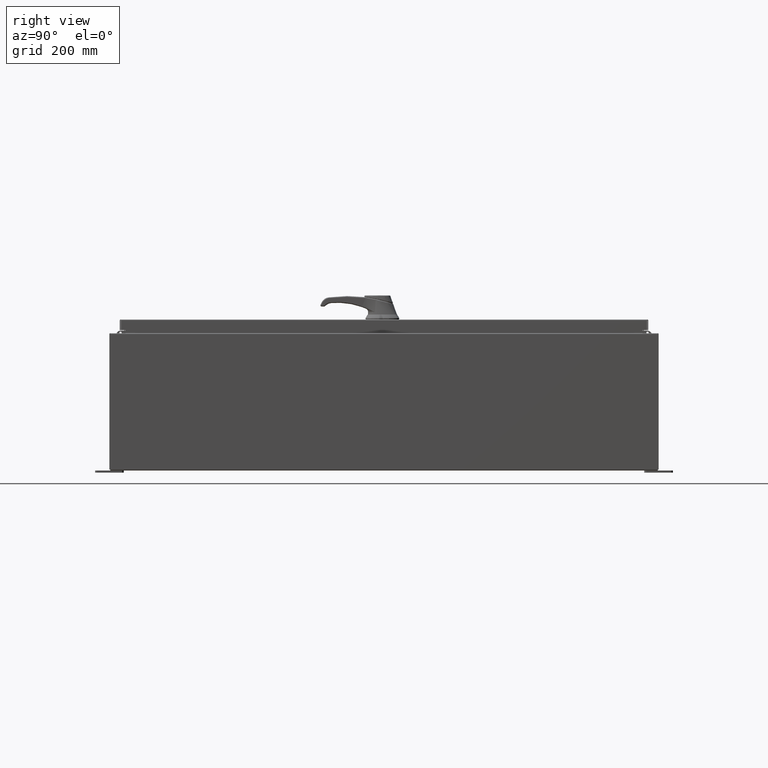
[diagram: clean part render]
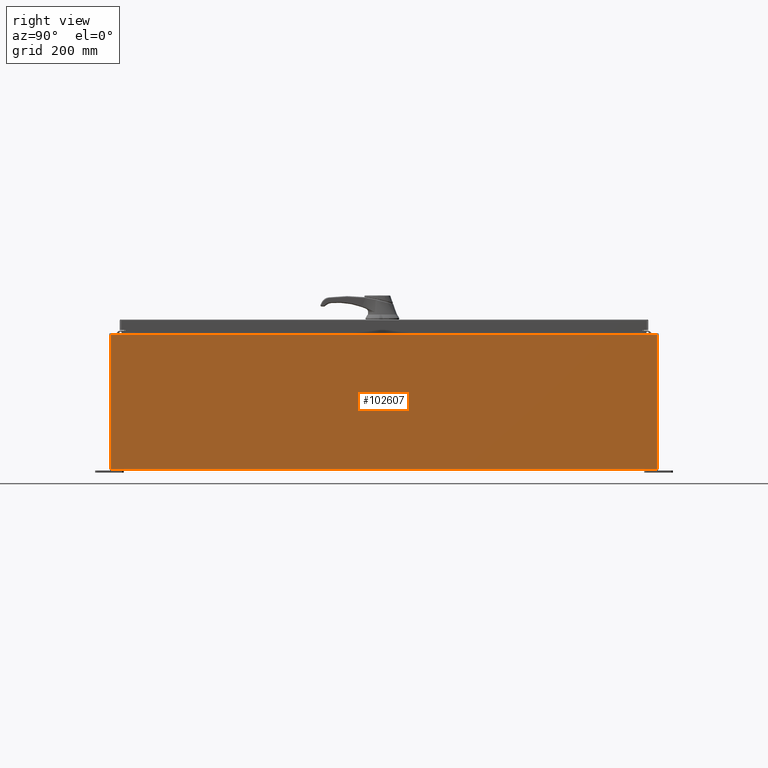
[diagram: same view with one face highlighted and labeled with its STEP entity id]
A machine part, right view. The second image highlights one B-rep face of the part: STEP entity #102607.
In plain terms, the highlighted planar face has unit normal (-1, 0, 0).
Its self-contained STEP definition (entity closure, byte-faithful):
#190 = DIRECTION ( 'NONE',  ( -1.000000000000000000, 0.0000000000000000000, 3.482016343714355100E-015 ) ) ;
#2678 = CARTESIAN_POINT ( 'NONE',  ( 18.00000000000003900, 23.92529999999998600, 11.83760000000000200 ) ) ;
#4568 = ORIENTED_EDGE ( 'NONE', *, *, #33200, .T. ) ;
#10019 = DIRECTION ( 'NONE',  ( -0.0000000000000000000, -1.000000000000000000, -0.0000000000000000000 ) ) ;
#11532 = CARTESIAN_POINT ( 'NONE',  ( 17.99999999999999600, -23.92529999999998900, 0.01299999999999897800 ) ) ;
#13316 = ORIENTED_EDGE ( 'NONE', *, *, #66158, .T. ) ;
#14731 = CARTESIAN_POINT ( 'NONE',  ( 18.00000000000003900, -23.92529999999998900, 11.83760000000000200 ) ) ;
#15460 = VERTEX_POINT ( 'NONE', #69474 ) ;
#15746 = EDGE_CURVE ( 'NONE', #41990, #130540, #18538, .T. ) ;
#18538 = LINE ( 'NONE', #51726, #46141 ) ;
#33200 = EDGE_CURVE ( 'NONE', #130540, #76862, #59593, .T. ) ;
#33904 = ORIENTED_EDGE ( 'NONE', *, *, #15746, .T. ) ;
#41990 = VERTEX_POINT ( 'NONE', #2678 ) ;
#46141 = VECTOR ( 'NONE', #10019, 39.37007874015748100 ) ;
#47629 = CARTESIAN_POINT ( 'NONE',  ( 17.99999999999999600, -23.92529999999998900, 0.01299999999999984700 ) ) ;
#51493 = FACE_OUTER_BOUND ( 'NONE', #52325, .T. ) ;
#51726 = CARTESIAN_POINT ( 'NONE',  ( 18.00000000000003900, 23.92529999999998900, 11.83760000000000200 ) ) ;
#52325 = EDGE_LOOP ( 'NONE', ( #33904, #4568, #90750, #13316 ) ) ;
#54434 = DIRECTION ( 'NONE',  ( -3.482016343714355500E-015, 0.0000000000000000000, -1.000000000000000000 ) ) ;
#58040 = DIRECTION ( 'NONE',  ( -1.590339826456887700E-031, -1.000000000000000000, -4.567295697298285000E-017 ) ) ;
#59593 = LINE ( 'NONE', #75287, #111473 ) ;
#66131 = AXIS2_PLACEMENT_3D ( 'NONE', #103596, #190, #72762 ) ;
#66158 = EDGE_CURVE ( 'NONE', #15460, #41990, #89676, .T. ) ;
#69474 = CARTESIAN_POINT ( 'NONE',  ( 17.99999999999999600, 23.92529999999998600, 0.01300000000000203200 ) ) ;
#72762 = DIRECTION ( 'NONE',  ( 3.482016343714355100E-015, 0.0000000000000000000, 1.000000000000000000 ) ) ;
#75287 = CARTESIAN_POINT ( 'NONE',  ( 17.99999999999999600, -23.92529999999998900, -6.293710784286996200E-014 ) ) ;
#76862 = VERTEX_POINT ( 'NONE', #11532 ) ;
#89676 = LINE ( 'NONE', #92966, #113991 ) ;
#90750 = ORIENTED_EDGE ( 'NONE', *, *, #121441, .F. ) ;
#92966 = CARTESIAN_POINT ( 'NONE',  ( 17.99999999999999600, 23.92529999999998900, -6.293710784286996200E-014 ) ) ;
#101772 = LINE ( 'NONE', #47629, #129312 ) ;
#102607 = ADVANCED_FACE ( 'NONE', ( #51493 ), #124401, .F. ) ;
#103596 = CARTESIAN_POINT ( 'NONE',  ( 17.99999999999999600, 0.0000000000000000000, -6.293710784286996200E-014 ) ) ;
#111473 = VECTOR ( 'NONE', #54434, 39.37007874015748100 ) ;
#113991 = VECTOR ( 'NONE', #134169, 39.37007874015748100 ) ;
#121441 = EDGE_CURVE ( 'NONE', #15460, #76862, #101772, .T. ) ;
#124401 = PLANE ( 'NONE',  #66131 ) ;
#129312 = VECTOR ( 'NONE', #58040, 39.37007874015748100 ) ;
#130540 = VERTEX_POINT ( 'NONE', #14731 ) ;
#134169 = DIRECTION ( 'NONE',  ( 3.482016343714355500E-015, 0.0000000000000000000, 1.000000000000000000 ) ) ;